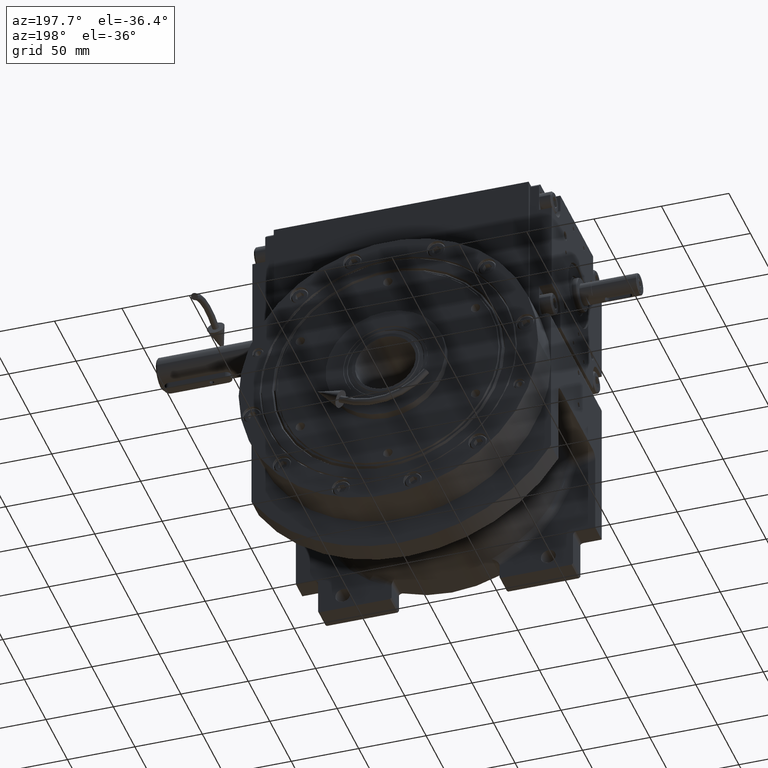
[diagram: clean part render]
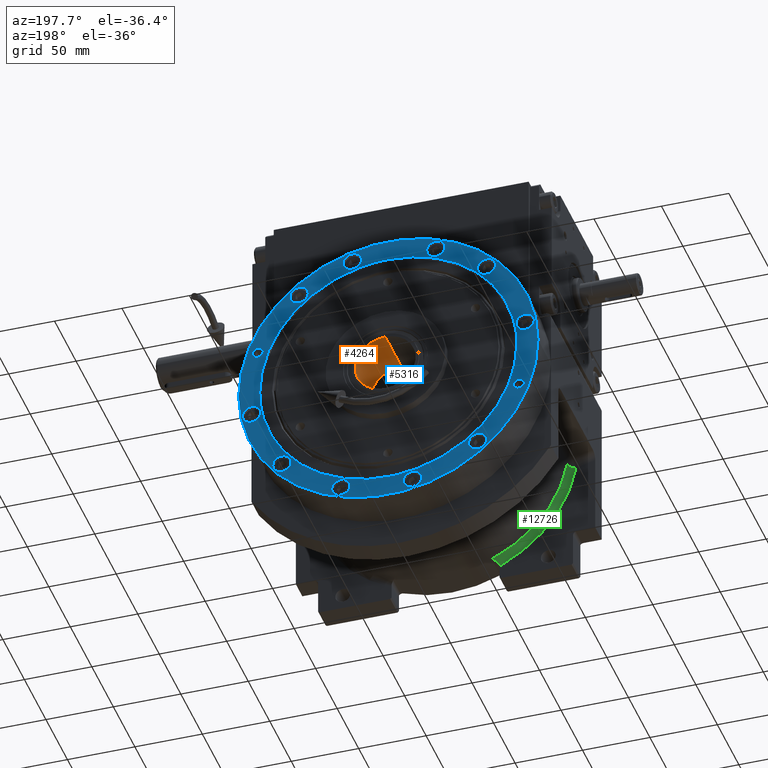
[diagram: same view with three faces highlighted in distinct colors, each labeled with its STEP entity id]
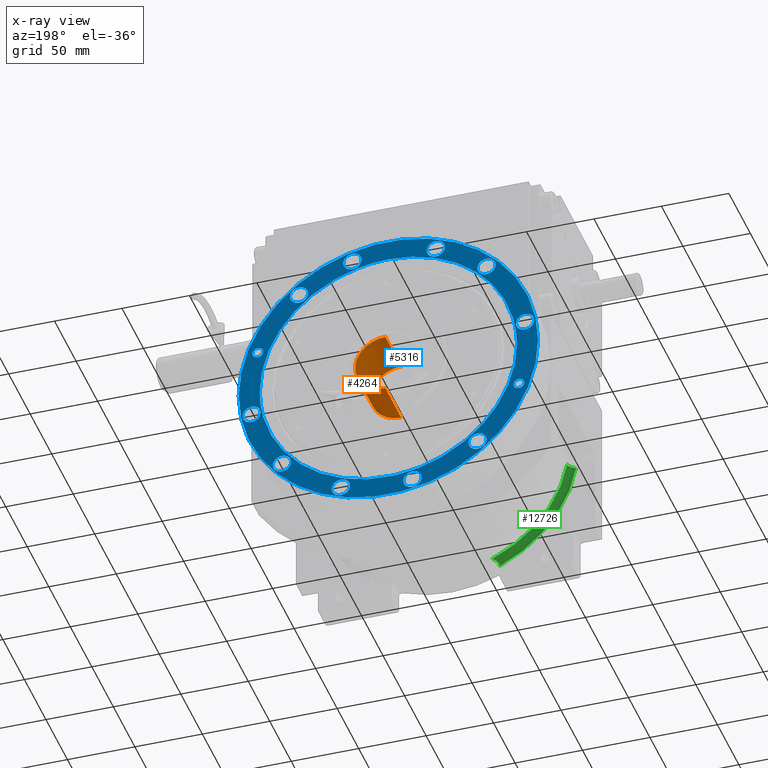
[diagram: x-ray of the same camera — body ghosted, the three highlighted faces saturated]
A machine part, auxiliary view with three faces highlighted in distinct colors.
The next image is the same camera in x-ray (body ghosted, the three faces saturated) — at least one of them is partly hidden behind the body in this view.
Their STEP definitions:

[orange] entity #4264 — the highlighted cylindrical surface (edge-blend (fillet) strip) has radius 22.5 mm, axis along (0, -1, 0).
#496 = CIRCLE ( 'NONE', #66242, 22.50000000000000000 ) ;
#581 = VECTOR ( 'NONE', #63759, 1000.000000000000000 ) ;
#1739 = VERTEX_POINT ( 'NONE', #59413 ) ;
#4264 = ADVANCED_FACE ( 'NONE', ( #16857 ), #53827, .F. ) ;
#4739 = EDGE_CURVE ( 'NONE', #49325, #18352, #496, .T. ) ;
#8227 = AXIS2_PLACEMENT_3D ( 'NONE', #32227, #53504, #48973 ) ;
#9124 = CARTESIAN_POINT ( 'NONE',  ( 22.50000000000000000, 1.775709547036180256E-15, 9.999999999999994671 ) ) ;
#11554 = DIRECTION ( 'NONE',  ( 0.000000000000000000, 0.000000000000000000, -1.000000000000000000 ) ) ;
#16857 = FACE_OUTER_BOUND ( 'NONE', #42939, .T. ) ;
#17493 = EDGE_CURVE ( 'NONE', #1739, #21346, #46118, .T. ) ;
#18308 = ORIENTED_EDGE ( 'NONE', *, *, #17493, .T. ) ;
#18352 = VERTEX_POINT ( 'NONE', #63827 ) ;
#18868 = EDGE_CURVE ( 'NONE', #18352, #21346, #42497, .T. ) ;
#21346 = VERTEX_POINT ( 'NONE', #49564 ) ;
#32227 = CARTESIAN_POINT ( 'NONE',  ( 0.000000000000000000, 2.571673343026990270E-15, 9.999999999999994671 ) ) ;
#35027 = DIRECTION ( 'NONE',  ( 1.000000000000000000, -1.578983857244664921E-16, 0.000000000000000000 ) ) ;
#35186 = ORIENTED_EDGE ( 'NONE', *, *, #43159, .T. ) ;
#38413 = CARTESIAN_POINT ( 'NONE',  ( 0.000000000000000000, 3.552713678800499352E-15, 9.999999999999994671 ) ) ;
#39742 = LINE ( 'NONE', #50553, #53269 ) ;
#42497 = LINE ( 'NONE', #52624, #581 ) ;
#42939 = EDGE_LOOP ( 'NONE', ( #35186, #18308, #55869, #66685 ) ) ;
#43159 = EDGE_CURVE ( 'NONE', #49325, #1739, #39742, .T. ) ;
#44277 = DIRECTION ( 'NONE',  ( 0.000000000000000000, 0.000000000000000000, -1.000000000000000000 ) ) ;
#44464 = DIRECTION ( 'NONE',  ( 0.000000000000000000, 0.000000000000000000, -1.000000000000000000 ) ) ;
#46118 = CIRCLE ( 'NONE', #65011, 22.50000000000000000 ) ;
#48973 = DIRECTION ( 'NONE',  ( -1.000000000000000000, 0.000000000000000000, 0.000000000000000000 ) ) ;
#49325 = VERTEX_POINT ( 'NONE', #9124 ) ;
#49564 = CARTESIAN_POINT ( 'NONE',  ( -22.50000000000000000, 8.572244476756641794E-16, -26.99999999999999645 ) ) ;
#50553 = CARTESIAN_POINT ( 'NONE',  ( 22.50000000000000000, 5.327128641108539387E-15, 9.999999999999994671 ) ) ;
#52624 = CARTESIAN_POINT ( 'NONE',  ( -22.50000000000000000, 2.571673343026990270E-15, 9.999999999999994671 ) ) ;
#53269 = VECTOR ( 'NONE', #44277, 1000.000000000000000 ) ;
#53504 = DIRECTION ( 'NONE',  ( 0.000000000000000000, 0.000000000000000000, 1.000000000000000000 ) ) ;
#53827 = CYLINDRICAL_SURFACE ( 'NONE', #8227, 22.50000000000000000 ) ;
#55869 = ORIENTED_EDGE ( 'NONE', *, *, #18868, .F. ) ;
#59413 = CARTESIAN_POINT ( 'NONE',  ( 22.50000000000000000, 1.775709547036180256E-15, -26.99999999999999645 ) ) ;
#63759 = DIRECTION ( 'NONE',  ( 0.000000000000000000, 0.000000000000000000, -1.000000000000000000 ) ) ;
#63827 = CARTESIAN_POINT ( 'NONE',  ( -22.50000000000000000, 8.572244476756641794E-16, 9.999999999999994671 ) ) ;
#63862 = DIRECTION ( 'NONE',  ( 1.000000000000000000, -1.578983857244664921E-16, 0.000000000000000000 ) ) ;
#65011 = AXIS2_PLACEMENT_3D ( 'NONE', #67092, #44464, #35027 ) ;
#66242 = AXIS2_PLACEMENT_3D ( 'NONE', #38413, #11554, #63862 ) ;
#66685 = ORIENTED_EDGE ( 'NONE', *, *, #4739, .F. ) ;
#67092 = CARTESIAN_POINT ( 'NONE',  ( 0.000000000000000000, 3.552713678800499352E-15, -26.99999999999999645 ) ) ;

[blue] entity #5316 — the highlighted planar face has unit normal (0, 1, 0).
#125 = PLANE ( 'NONE',  #43910 ) ;
#344 = CARTESIAN_POINT ( 'NONE',  ( -86.90708454479874945, -39.38558881133341316, 30.00000000000000000 ) ) ;
#446 = CARTESIAN_POINT ( 'NONE',  ( 26.65836164555969745, -99.49036010777399497, 30.00000000000000000 ) ) ;
#586 = DIRECTION ( 'NONE',  ( 0.000000000000000000, 0.000000000000000000, -1.000000000000000000 ) ) ;
#636 = VERTEX_POINT ( 'NONE', #4234 ) ;
#717 = CARTESIAN_POINT ( 'NONE',  ( -93.37678127073233725, -19.36817286081602418, 30.00000000000000000 ) ) ;
#1112 = EDGE_CURVE ( 'NONE', #1313, #38443, #45524, .T. ) ;
#1255 = DIRECTION ( 'NONE',  ( 0.000000000000000000, 0.000000000000000000, 1.000000000000000000 ) ) ;
#1313 = VERTEX_POINT ( 'NONE', #61565 ) ;
#1317 = CARTESIAN_POINT ( 'NONE',  ( 90.50165223639055512, -30.70816640261620734, 30.00000000000000355 ) ) ;
#1653 = CARTESIAN_POINT ( 'NONE',  ( 94.46446488700054545, -13.22672580336032766, 30.00000000000000000 ) ) ;
#1850 = DIRECTION ( 'NONE',  ( -1.000000000000000000, 0.000000000000000000, 0.000000000000000000 ) ) ;
#1936 = DIRECTION ( 'NONE',  ( -1.000000000000000000, 0.000000000000000000, 0.000000000000000000 ) ) ;
#1980 = VERTEX_POINT ( 'NONE', #60344 ) ;
#2085 = ORIENTED_EDGE ( 'NONE', *, *, #8615, .F. ) ;
#2575 = CARTESIAN_POINT ( 'NONE',  ( 12.46375600860570287, 94.75295601976939963, 30.00000000000000000 ) ) ;
#2841 = CARTESIAN_POINT ( 'NONE',  ( -101.4351985602574047, -17.88576229969384812, 30.00000000000000000 ) ) ;
#2942 = CARTESIAN_POINT ( 'NONE',  ( 82.63521789501693604, 47.70355364001917309, 30.00000000000000000 ) ) ;
#3043 = EDGE_LOOP ( 'NONE', ( #51565, #18994 ) ) ;
#3234 = CARTESIAN_POINT ( 'NONE',  ( -72.83199846221440055, -72.83199846221440055, 30.00000000000000000 ) ) ;
#3282 = CARTESIAN_POINT ( 'NONE',  ( 93.21483388766992562, 20.13355074554134205, 30.00000000000000000 ) ) ;
#3425 = EDGE_CURVE ( 'NONE', #68471, #61091, #50872, .T. ) ;
#3493 = EDGE_CURVE ( 'NONE', #9496, #16927, #22336, .T. ) ;
#3617 = CARTESIAN_POINT ( 'NONE',  ( -58.18781742204076579, 75.81346727614813119, 30.00000000000000355 ) ) ;
#3707 = DIRECTION ( 'NONE',  ( 1.000000000000000000, 0.000000000000000000, 0.000000000000000000 ) ) ;
#3802 = EDGE_CURVE ( 'NONE', #62930, #53447, #53887, .T. ) ;
#3807 = ORIENTED_EDGE ( 'NONE', *, *, #36757, .F. ) ;
#3873 = DIRECTION ( 'NONE',  ( 0.000000000000000000, 0.000000000000000000, 1.000000000000000000 ) ) ;
#3960 = CARTESIAN_POINT ( 'NONE',  ( 63.00504599296380093, 71.86005922779146715, 30.00000000000000000 ) ) ;
#4234 = CARTESIAN_POINT ( 'NONE',  ( -24.63576229969385167, 101.4351985602574047, 30.00000000000000000 ) ) ;
#4674 = CARTESIAN_POINT ( 'NONE',  ( 0.000000000000000000, 0.000000000000000000, 30.00000000000000000 ) ) ;
#5316 = ADVANCED_FACE ( 'NONE', ( #9584, #25947, #47945, #47605, #41665, #68858, #62941, #21065, #15157, #42358, #31187, #57371, #63621, #15842 ), #125, .T. ) ;
#5612 = CARTESIAN_POINT ( 'NONE',  ( -93.21483409806533871, -20.13354977035402271, 30.00000000000000000 ) ) ;
#5955 = CARTESIAN_POINT ( 'NONE',  ( -63.00504900422143351, -71.86005655515261026, 29.99999999999999645 ) ) ;
#6345 = VERTEX_POINT ( 'NONE', #34822 ) ;
#6427 = CARTESIAN_POINT ( 'NONE',  ( -92.78833994094860316, 35.22807476254389769, 30.00000000000000000 ) ) ;
#6442 = EDGE_CURVE ( 'NONE', #51020, #46300, #8721, .T. ) ;
#6649 = CARTESIAN_POINT ( 'NONE',  ( -42.27891310516112355, -85.70857936102159158, 30.00000000000000711 ) ) ;
#7201 = DIRECTION ( 'NONE',  ( 1.000000000000000000, 0.000000000000000000, 0.000000000000000000 ) ) ;
#7247 = CARTESIAN_POINT ( 'NONE',  ( 82.77081126671009770, -47.77538228772262840, 30.00000000000000355 ) ) ;
#7305 = VERTEX_POINT ( 'NONE', #25460 ) ;
#7591 = CARTESIAN_POINT ( 'NONE',  ( 71.85999133533280769, -63.00468083268515329, 30.00000000000000355 ) ) ;
#7787 = AXIS2_PLACEMENT_3D ( 'NONE', #50615, #34575, #45722 ) ;
#7905 = B_SPLINE_CURVE_WITH_KNOTS ( 'NONE', 3,
 ( #29115, #51778, #23884, #57001, #45176, #35392, #20002, #50761, #35049, #18638, #67796, #14771, #9206, #39935, #13432, #3617, #40965, #51091, #66771, #18987, #56662, #24225, #51448, #2575, #25243, #62228, #34713, #55983, #8168, #3960, #67457, #24896, #29443, #2942, #8875, #36062, #62569, #40288, #29790, #50413, #3282, #41312, #45518, #61892, #30132, #46537 ),
 .UNSPECIFIED., .F., .F.,
 ( 4, 1, 1, 1, 2, 2, 2, 2, 2, 2, 2, 2, 2, 2, 2, 2, 2, 2, 2, 2, 1, 1, 1, 2, 2, 4 ),
 ( 0.000000000000000000, 0.03124999999999973632, 0.04687499999999959061, 0.05468749999999950734, 0.05859374999999949346, 0.06249999999999947264, 0.1249999999999995282, 0.1874999999999995282, 0.2499999999999995559, 0.3124999999999995559, 0.3749999999999996114, 0.4374999999999996114, 0.4999999999999996669, 0.5624999999999996669, 0.6249999999999996669, 0.6874999999999997780, 0.7499999999999997780, 0.8124999999999997780, 0.8437499999999997780, 0.8749999999999996669, 0.9062499999999996669, 0.9218749999999996669, 0.9296874999999996669, 0.9335937499999996669, 0.9374999999999996669, 1.000000000000000000 ),
 .UNSPECIFIED. ) ;
#7930 = EDGE_CURVE ( 'NONE', #32908, #60410, #41100, .T. ) ;
#7938 = DIRECTION ( 'NONE',  ( 0.000000000000000000, 0.000000000000000000, 1.000000000000000000 ) ) ;
#8168 = CARTESIAN_POINT ( 'NONE',  ( 58.18774278256792343, 75.81359446972774663, 30.00000000000000000 ) ) ;
#8323 = DIRECTION ( 'NONE',  ( 1.000000000000000000, 0.000000000000000000, 0.000000000000000000 ) ) ;
#8615 = EDGE_CURVE ( 'NONE', #46300, #51020, #22263, .T. ) ;
#8721 = CIRCLE ( 'NONE', #55496, 6.749999999999999112 ) ;
#8797 = AXIS2_PLACEMENT_3D ( 'NONE', #53134, #16491, #21374 ) ;
#8875 = CARTESIAN_POINT ( 'NONE',  ( 85.57274150929065115, 42.20782214628508200, 30.00000000000001066 ) ) ;
#8885 = AXIS2_PLACEMENT_3D ( 'NONE', #65794, #11769, #7201 ) ;
#8931 = DIRECTION ( 'NONE',  ( 0.000000000000000000, 0.000000000000000000, 1.000000000000000000 ) ) ;
#9206 = CARTESIAN_POINT ( 'NONE',  ( -75.81391896997033086, 58.18694900105990797, 30.00000000000001776 ) ) ;
#9496 = VERTEX_POINT ( 'NONE', #30188 ) ;
#9584 = FACE_BOUND ( 'NONE', #15658, .T. ) ;
#9636 = VERTEX_POINT ( 'NONE', #6427 ) ;
#10244 = DIRECTION ( 'NONE',  ( -1.000000000000000000, 0.000000000000000000, 0.000000000000000000 ) ) ;
#10667 = CARTESIAN_POINT ( 'NONE',  ( 72.95712379771360645, -78.90257764125479412, 30.00000000000000000 ) ) ;
#11029 = DIRECTION ( 'NONE',  ( 0.000000000000000000, 0.000000000000000000, 1.000000000000000000 ) ) ;
#11114 = ORIENTED_EDGE ( 'NONE', *, *, #6442, .F. ) ;
#11243 = CIRCLE ( 'NONE', #34660, 6.749999999999999112 ) ;
#11351 = CIRCLE ( 'NONE', #51456, 6.750000000000006217 ) ;
#11357 = EDGE_LOOP ( 'NONE', ( #12372, #32701 ) ) ;
#11769 = DIRECTION ( 'NONE',  ( 0.000000000000000000, 0.000000000000000000, 1.000000000000000000 ) ) ;
#12372 = ORIENTED_EDGE ( 'NONE', *, *, #65785, .F. ) ;
#12659 = DIRECTION ( 'NONE',  ( 0.000000000000000000, 0.000000000000000000, 1.000000000000000000 ) ) ;
#13432 = CARTESIAN_POINT ( 'NONE',  ( -63.00533367268138107, 71.85987798514420888, 30.00000000000000000 ) ) ;
#13721 = CARTESIAN_POINT ( 'NONE',  ( -35.22807476254394743, -96.78833994094861737, 30.00000000000000000 ) ) ;
#14370 = CIRCLE ( 'NONE', #8797, 4.000000000000003553 ) ;
#14606 = EDGE_LOOP ( 'NONE', ( #45671, #30124 ) ) ;
#14771 = CARTESIAN_POINT ( 'NONE',  ( -82.77081249183450495, 47.77538013039470144, 30.00000000000000711 ) ) ;
#14872 = VERTEX_POINT ( 'NONE', #10667 ) ;
#15062 = AXIS2_PLACEMENT_3D ( 'NONE', #61009, #40773, #8323 ) ;
#15157 = FACE_BOUND ( 'NONE', #14606, .T. ) ;
#15382 = CARTESIAN_POINT ( 'NONE',  ( 78.90257764125479412, 66.20712379771359224, 30.00000000000000000 ) ) ;
#15658 = EDGE_LOOP ( 'NONE', ( #56767, #49535, #24382 ) ) ;
#15769 = CARTESIAN_POINT ( 'NONE',  ( 59.45712379771349987, -78.90257764125479412, 30.00000000000000000 ) ) ;
#15842 = FACE_OUTER_BOUND ( 'NONE', #22026, .T. ) ;
#16081 = CARTESIAN_POINT ( 'NONE',  ( 108.1851985602573905, 17.88576229969384812, 30.00000000000000000 ) ) ;
#16085 = CIRCLE ( 'NONE', #48253, 111.0000000000000000 ) ;
#16207 = EDGE_CURVE ( 'NONE', #40003, #35895, #16085, .T. ) ;
#16338 = DIRECTION ( 'NONE',  ( 0.000000000000000000, 0.000000000000000000, 1.000000000000000000 ) ) ;
#16427 = CARTESIAN_POINT ( 'NONE',  ( 66.20712379771359224, -78.90257764125479412, 30.00000000000000000 ) ) ;
#16491 = DIRECTION ( 'NONE',  ( 0.000000000000000000, 0.000000000000000000, -1.000000000000000000 ) ) ;
#16600 = DIRECTION ( 'NONE',  ( 1.000000000000000000, 0.000000000000000000, 0.000000000000000000 ) ) ;
#16764 = CARTESIAN_POINT ( 'NONE',  ( -12.46376276013532269, -94.75295510460688320, 29.99999999999999645 ) ) ;
#16927 = VERTEX_POINT ( 'NONE', #33931 ) ;
#17090 = CARTESIAN_POINT ( 'NONE',  ( -30.70968628796335764, -90.50082709171405781, 30.00000000000000355 ) ) ;
#17558 = EDGE_CURVE ( 'NONE', #53447, #62930, #38294, .T. ) ;
#18044 = CARTESIAN_POINT ( 'NONE',  ( 12.46351380911021245, -94.75307471979527918, 30.00000000000000711 ) ) ;
#18061 = DIRECTION ( 'NONE',  ( 0.000000000000000000, 0.000000000000000000, 1.000000000000000000 ) ) ;
#18388 = CARTESIAN_POINT ( 'NONE',  ( 93.82440576391282150, -17.06861220496205078, 29.99999999999999645 ) ) ;
#18401 = DIRECTION ( 'NONE',  ( -1.000000000000000000, 0.000000000000000000, 0.000000000000000000 ) ) ;
#18638 = CARTESIAN_POINT ( 'NONE',  ( -90.50165271740971207, 30.70816492772434003, 30.00000000000000000 ) ) ;
#18901 = AXIS2_PLACEMENT_3D ( 'NONE', #446, #12659, #27327 ) ;
#18936 = CIRCLE ( 'NONE', #41262, 6.750000000000006217 ) ;
#18987 = CARTESIAN_POINT ( 'NONE',  ( -24.74579984280093115, 92.31004320519716089, 30.00000000000000355 ) ) ;
#18994 = ORIENTED_EDGE ( 'NONE', *, *, #42344, .T. ) ;
#19214 = DIRECTION ( 'NONE',  ( -1.000000000000000000, 0.000000000000000000, 0.000000000000000000 ) ) ;
#19500 = EDGE_CURVE ( 'NONE', #59185, #56883, #31658, .T. ) ;
#19663 = ORIENTED_EDGE ( 'NONE', *, *, #42474, .F. ) ;
#19738 = ORIENTED_EDGE ( 'NONE', *, *, #1112, .F. ) ;
#20002 = CARTESIAN_POINT ( 'NONE',  ( -93.68169764418615841, 17.83509717152595542, 30.00000000000000355 ) ) ;
#20184 = ORIENTED_EDGE ( 'NONE', *, *, #51719, .F. ) ;
#20619 = VERTEX_POINT ( 'NONE', #37899 ) ;
#21064 = CIRCLE ( 'NONE', #37875, 4.000000000000003553 ) ;
#21065 = FACE_BOUND ( 'NONE', #46050, .T. ) ;
#21122 = CARTESIAN_POINT ( 'NONE',  ( -17.88576229969384812, 101.4351985602574047, 30.00000000000000000 ) ) ;
#21374 = DIRECTION ( 'NONE',  ( -1.000000000000000000, 0.000000000000000000, 0.000000000000000000 ) ) ;
#21996 = CARTESIAN_POINT ( 'NONE',  ( -94.74933639994532086, -12.47889505275104050, 30.00000000000000355 ) ) ;
#22026 = EDGE_LOOP ( 'NONE', ( #59397, #53060 ) ) ;
#22263 = CIRCLE ( 'NONE', #45679, 6.749999999999999112 ) ;
#22336 = B_SPLINE_CURVE_WITH_KNOTS ( 'NONE', 3,
 ( #59583, #64811, #55394, #1653, #54352, #18388, #44586, #22948, #44228, #1317, #65496, #7247, #49137, #7591, #38998, #33755, #28522, #49820, #23636, #65839, #18044, #39330, #28877 ),
 .UNSPECIFIED., .F., .F.,
 ( 4, 1, 1, 1, 2, 2, 2, 2, 2, 2, 2, 2, 4 ),
 ( 0.000000000000000000, 0.03125000153323884838, 0.04687500229985828298, 0.05468750268316800028, 0.05859375287482285199, 0.06250000306647769677, 0.1250000061329549494, 0.1875000091994322160, 0.2500000122659094548, 0.3125000153323866936, 0.3750000183988639879, 0.4375000214653412267, 0.5000000245318184655 ),
 .UNSPECIFIED. ) ;
#22349 = CARTESIAN_POINT ( 'NONE',  ( -6.261276405276430701, -95.36391539573197917, 30.00000000000000355 ) ) ;
#22875 = DIRECTION ( 'NONE',  ( 1.000000000000000000, 0.000000000000000000, 0.000000000000000000 ) ) ;
#22948 = CARTESIAN_POINT ( 'NONE',  ( 93.60825815810538586, -18.21660170345569085, 29.99999999999999289 ) ) ;
#23035 = CARTESIAN_POINT ( 'NONE',  ( -58.18774616747545991, -75.81359184743369894, 29.99999999999999289 ) ) ;
#23508 = EDGE_CURVE ( 'NONE', #55620, #6345, #34577, .T. ) ;
#23524 = CARTESIAN_POINT ( 'NONE',  ( 101.4351985602574047, 17.88576229969384812, 30.00000000000000000 ) ) ;
#23636 = CARTESIAN_POINT ( 'NONE',  ( 30.70942879387967750, -90.50100865208744949, 30.00000000000000711 ) ) ;
#23825 = AXIS2_PLACEMENT_3D ( 'NONE', #28439, #64373, #16600 ) ;
#23884 = CARTESIAN_POINT ( 'NONE',  ( -95.13156735912539830, 7.818614458239847131, 30.00000000000001066 ) ) ;
#24225 = CARTESIAN_POINT ( 'NONE',  ( -6.261284131796054808, 95.36384835916985026, 29.99999999999999645 ) ) ;
#24267 = CIRCLE ( 'NONE', #54346, 6.749999999999999112 ) ;
#24382 = ORIENTED_EDGE ( 'NONE', *, *, #31992, .T. ) ;
#24598 = ORIENTED_EDGE ( 'NONE', *, *, #37942, .F. ) ;
#24636 = CARTESIAN_POINT ( 'NONE',  ( 41.97807476254389769, 96.78833994094861737, 30.00000000000000000 ) ) ;
#24767 = CARTESIAN_POINT ( 'NONE',  ( -59.45712379771349987, 78.90257764125469464, 30.00000000000000000 ) ) ;
#24797 = DIRECTION ( 'NONE',  ( 0.000000000000000000, 0.000000000000000000, 1.000000000000000000 ) ) ;
#24896 = CARTESIAN_POINT ( 'NONE',  ( 75.81440643586275030, 58.18610879824851168, 30.00000000000000355 ) ) ;
#25243 = CARTESIAN_POINT ( 'NONE',  ( 24.74553572605270091, 92.31016553175284400, 30.00000000000000355 ) ) ;
#25296 = EDGE_LOOP ( 'NONE', ( #53108, #3807 ) ) ;
#25327 = EDGE_CURVE ( 'NONE', #1980, #26799, #11351, .T. ) ;
#25460 = CARTESIAN_POINT ( 'NONE',  ( -95.36396765462809810, -1.146839552493053995E-07, 30.00000093867580375 ) ) ;
#25600 = DIRECTION ( 'NONE',  ( 0.000000000000000000, 0.000000000000000000, -1.000000000000000000 ) ) ;
#25736 = CARTESIAN_POINT ( 'NONE',  ( -96.78833994094861737, 35.22807476254389769, 30.00000000000000000 ) ) ;
#25947 = FACE_BOUND ( 'NONE', #60874, .T. ) ;
#25956 = CARTESIAN_POINT ( 'NONE',  ( -72.95712379771350697, 78.90257764125469464, 30.00000000000000000 ) ) ;
#26525 = CARTESIAN_POINT ( 'NONE',  ( 94.68519856025739045, 17.88576229969384812, 30.00000000000000000 ) ) ;
#26799 = VERTEX_POINT ( 'NONE', #35935 ) ;
#26891 = CARTESIAN_POINT ( 'NONE',  ( -47.77533377604817844, -82.77059198701886089, 30.00000000000000355 ) ) ;
#27228 = CARTESIAN_POINT ( 'NONE',  ( -89.30279205802959552, -33.60238237805035055, 29.99999999999999289 ) ) ;
#27327 = DIRECTION ( 'NONE',  ( 1.000000000000000000, 0.000000000000000000, 0.000000000000000000 ) ) ;
#27365 = CIRCLE ( 'NONE', #55218, 4.000000000000003553 ) ;
#27616 = CIRCLE ( 'NONE', #36536, 6.750000000000006217 ) ;
#27929 = CARTESIAN_POINT ( 'NONE',  ( -92.33404816371216839, -23.93848833026562062, 30.00000000000000355 ) ) ;
#28252 = CARTESIAN_POINT ( 'NONE',  ( -93.45575989371496917, -18.98328321807429475, 30.00000000000000000 ) ) ;
#28439 = CARTESIAN_POINT ( 'NONE',  ( 101.4351985602574047, 17.88576229969384812, 30.00000000000000000 ) ) ;
#28522 = CARTESIAN_POINT ( 'NONE',  ( 47.77527696021381587, -82.77071031253373690, 30.00000000000000711 ) ) ;
#28534 = EDGE_LOOP ( 'NONE', ( #20184, #36468 ) ) ;
#28877 = CARTESIAN_POINT ( 'NONE',  ( -4.229489444460266770E-10, -95.36392179383099688, 29.99999999999998579 ) ) ;
#29115 = CARTESIAN_POINT ( 'NONE',  ( -95.36396765462809810, -1.146839552493053995E-07, 30.00000093867580375 ) ) ;
#29443 = CARTESIAN_POINT ( 'NONE',  ( 81.03134691207912965, 50.37871826842354750, 30.00000000000000000 ) ) ;
#29670 = AXIS2_PLACEMENT_3D ( 'NONE', #64123, #16338, #47412 ) ;
#29790 = CARTESIAN_POINT ( 'NONE',  ( 92.33404786841357748, 23.93848947927231663, 30.00000000000000711 ) ) ;
#29866 = CARTESIAN_POINT ( 'NONE',  ( 85.65257764125480833, 66.20712379771359224, 30.00000000000000000 ) ) ;
#30124 = ORIENTED_EDGE ( 'NONE', *, *, #38441, .F. ) ;
#30132 = CARTESIAN_POINT ( 'NONE',  ( 95.36004226804972461, 6.278671310551059648, 30.00000000000000000 ) ) ;
#30188 = CARTESIAN_POINT ( 'NONE',  ( 95.36396765462740177, 1.146839460001253997E-07, 30.00000093867605244 ) ) ;
#30933 = VERTEX_POINT ( 'NONE', #50844 ) ;
#31187 = FACE_BOUND ( 'NONE', #44648, .T. ) ;
#31221 = CARTESIAN_POINT ( 'NONE',  ( -41.97807476254394743, -96.78833994094861737, 30.00000000000000000 ) ) ;
#31658 = CIRCLE ( 'NONE', #60593, 6.750000000000006217 ) ;
#31992 = EDGE_CURVE ( 'NONE', #16927, #7305, #57778, .T. ) ;
#32119 = CARTESIAN_POINT ( 'NONE',  ( -75.81440830140243747, -58.18610632982992570, 30.00000000000000355 ) ) ;
#32701 = ORIENTED_EDGE ( 'NONE', *, *, #7930, .F. ) ;
#32908 = VERTEX_POINT ( 'NONE', #67045 ) ;
#33037 = AXIS2_PLACEMENT_3D ( 'NONE', #67159, #8931, #41687 ) ;
#33159 = CARTESIAN_POINT ( 'NONE',  ( -71.86025690672755672, -63.00450664072521079, 30.00000000000000711 ) ) ;
#33169 = DIRECTION ( 'NONE',  ( -1.000000000000000000, 0.000000000000000000, 0.000000000000000000 ) ) ;
#33509 = CARTESIAN_POINT ( 'NONE',  ( -90.87954666657383029, -29.19701578448387025, 29.99999999999999645 ) ) ;
#33755 = CARTESIAN_POINT ( 'NONE',  ( 58.18781398852603814, -75.81346993082416930, 30.00000000000000000 ) ) ;
#33931 = CARTESIAN_POINT ( 'NONE',  ( -4.229489444460266770E-10, -95.36392179383099688, 29.99999999999998579 ) ) ;
#33966 = DIRECTION ( 'NONE',  ( 0.000000000000000000, 0.000000000000000000, 1.000000000000000000 ) ) ;
#34575 = DIRECTION ( 'NONE',  ( 0.000000000000000000, 0.000000000000000000, -1.000000000000000000 ) ) ;
#34577 = CIRCLE ( 'NONE', #41238, 6.749999999999999112 ) ;
#34660 = AXIS2_PLACEMENT_3D ( 'NONE', #16427, #38077, #33169 ) ;
#34713 = CARTESIAN_POINT ( 'NONE',  ( 42.27890844989412500, 85.70858167851324083, 30.00000000000000355 ) ) ;
#34822 = CARTESIAN_POINT ( 'NONE',  ( 28.47807476254390124, 96.78833994094861737, 30.00000000000000000 ) ) ;
#35049 = CARTESIAN_POINT ( 'NONE',  ( -92.30979584540520477, 24.74573865369705317, 29.99999999999999289 ) ) ;
#35392 = CARTESIAN_POINT ( 'NONE',  ( -93.82440591446295741, 17.06861137740426670, 30.00000000000000000 ) ) ;
#35843 = CARTESIAN_POINT ( 'NONE',  ( -35.22807476254394743, -96.78833994094861737, 30.00000000000000000 ) ) ;
#35895 = VERTEX_POINT ( 'NONE', #56966 ) ;
#35935 = CARTESIAN_POINT ( 'NONE',  ( -66.08199846221440055, -72.83199846221440055, 30.00000000000000000 ) ) ;
#36062 = CARTESIAN_POINT ( 'NONE',  ( 86.90708372316407804, 39.38559063786794923, 30.00000000000000711 ) ) ;
#36441 = DIRECTION ( 'NONE',  ( 0.000000000000000000, 0.000000000000000000, 1.000000000000000000 ) ) ;
#36468 = ORIENTED_EDGE ( 'NONE', *, *, #25327, .F. ) ;
#36536 = AXIS2_PLACEMENT_3D ( 'NONE', #2841, #24797, #19214 ) ;
#36757 = EDGE_CURVE ( 'NONE', #61091, #68471, #54199, .T. ) ;
#37125 = DIRECTION ( 'NONE',  ( 1.000000000000000000, 0.000000000000000000, 0.000000000000000000 ) ) ;
#37308 = CARTESIAN_POINT ( 'NONE',  ( 33.40836164555970100, -99.49036010777399497, 30.00000000000000000 ) ) ;
#37495 = AXIS2_PLACEMENT_3D ( 'NONE', #46803, #41237, #62493 ) ;
#37875 = AXIS2_PLACEMENT_3D ( 'NONE', #25736, #586, #47014 ) ;
#37899 = CARTESIAN_POINT ( 'NONE',  ( 100.7883399409486032, -35.22807476254389769, 30.00000000000000000 ) ) ;
#37942 = EDGE_CURVE ( 'NONE', #60297, #636, #48735, .T. ) ;
#38077 = DIRECTION ( 'NONE',  ( 0.000000000000000000, 0.000000000000000000, 1.000000000000000000 ) ) ;
#38294 = CIRCLE ( 'NONE', #58349, 6.750000000000006217 ) ;
#38441 = EDGE_CURVE ( 'NONE', #6345, #55620, #24267, .T. ) ;
#38443 = VERTEX_POINT ( 'NONE', #63242 ) ;
#38735 = CARTESIAN_POINT ( 'NONE',  ( -82.63521911428769329, -47.70355151878913347, 30.00000000000000000 ) ) ;
#38998 = CARTESIAN_POINT ( 'NONE',  ( 63.00533069534351682, -71.85988062351042061, 30.00000000000000711 ) ) ;
#39275 = CARTESIAN_POINT ( 'NONE',  ( 26.65836164555969745, -99.49036010777399497, 30.00000000000000000 ) ) ;
#39330 = CARTESIAN_POINT ( 'NONE',  ( 6.261277018832593022, -95.36384883878687901, 30.00000000000000000 ) ) ;
#39894 = DIRECTION ( 'NONE',  ( 1.000000000000000000, 0.000000000000000000, 0.000000000000000000 ) ) ;
#39935 = CARTESIAN_POINT ( 'NONE',  ( -71.85999357129684029, 63.00467825743183425, 30.00000000000000711 ) ) ;
#39963 = DIRECTION ( 'NONE',  ( 0.000000000000000000, 0.000000000000000000, 1.000000000000000000 ) ) ;
#40003 = VERTEX_POINT ( 'NONE', #41242 ) ;
#40134 = EDGE_LOOP ( 'NONE', ( #19738, #61082 ) ) ;
#40288 = CARTESIAN_POINT ( 'NONE',  ( 90.87954623065817827, 29.19701717010804387, 30.00000000000000711 ) ) ;
#40378 = AXIS2_PLACEMENT_3D ( 'NONE', #52439, #40948, #57315 ) ;
#40773 = DIRECTION ( 'NONE',  ( 0.000000000000000000, 0.000000000000000000, 1.000000000000000000 ) ) ;
#40838 = ORIENTED_EDGE ( 'NONE', *, *, #17558, .F. ) ;
#40948 = DIRECTION ( 'NONE',  ( 0.000000000000000000, 0.000000000000000000, 1.000000000000000000 ) ) ;
#40965 = CARTESIAN_POINT ( 'NONE',  ( -47.77528118985262040, 82.77070784699705541, 30.00000000000000355 ) ) ;
#41100 = CIRCLE ( 'NONE', #50019, 6.749999999999999112 ) ;
#41237 = DIRECTION ( 'NONE',  ( 0.000000000000000000, 0.000000000000000000, 1.000000000000000000 ) ) ;
#41238 = AXIS2_PLACEMENT_3D ( 'NONE', #55743, #7938, #3707 ) ;
#41242 = CARTESIAN_POINT ( 'NONE',  ( -111.0000000000000000, 4.531193156845210737E-15, 30.00000000000000000 ) ) ;
#41262 = AXIS2_PLACEMENT_3D ( 'NONE', #65518, #18061, #50520 ) ;
#41312 = CARTESIAN_POINT ( 'NONE',  ( 93.37678107592141430, 19.36817380080752926, 30.00000000000000000 ) ) ;
#41637 = DIRECTION ( 'NONE',  ( 1.000000000000000000, 0.000000000000000000, 0.000000000000000000 ) ) ;
#41665 = FACE_BOUND ( 'NONE', #28534, .T. ) ;
#41687 = DIRECTION ( 'NONE',  ( -1.000000000000000000, 0.000000000000000000, 0.000000000000000000 ) ) ;
#42344 = EDGE_CURVE ( 'NONE', #30933, #9636, #21064, .T. ) ;
#42358 = FACE_BOUND ( 'NONE', #65542, .T. ) ;
#42474 = EDGE_CURVE ( 'NONE', #14872, #61591, #51219, .T. ) ;
#42965 = CIRCLE ( 'NONE', #15062, 6.750000000000006217 ) ;
#43278 = CARTESIAN_POINT ( 'NONE',  ( -95.36396765462809810, -1.146839552493053995E-07, 30.00000093867580375 ) ) ;
#43313 = ORIENTED_EDGE ( 'NONE', *, *, #60176, .T. ) ;
#43910 = AXIS2_PLACEMENT_3D ( 'NONE', #4674, #36441, #37125 ) ;
#44228 = CARTESIAN_POINT ( 'NONE',  ( 92.30979554816967436, -24.74573984201948207, 30.00000000000000355 ) ) ;
#44586 = CARTESIAN_POINT ( 'NONE',  ( 93.68169747965613681, -17.83509803590425236, 30.00000000000000000 ) ) ;
#44648 = EDGE_LOOP ( 'NONE', ( #47820, #40838 ) ) ;
#44840 = CARTESIAN_POINT ( 'NONE',  ( -101.4351985602574047, -17.88576229969384812, 30.00000000000000000 ) ) ;
#44852 = CIRCLE ( 'NONE', #40378, 111.0000000000000000 ) ;
#45176 = CARTESIAN_POINT ( 'NONE',  ( -94.03135713042799182, 15.91796746885852265, 30.00000000000000355 ) ) ;
#45518 = CARTESIAN_POINT ( 'NONE',  ( 93.45575970705768043, 18.98328413746123289, 30.00000000000000000 ) ) ;
#45524 = CIRCLE ( 'NONE', #54415, 6.750000000000006217 ) ;
#45549 = ORIENTED_EDGE ( 'NONE', *, *, #67255, .F. ) ;
#45654 = EDGE_CURVE ( 'NONE', #7305, #9496, #7905, .T. ) ;
#45671 = ORIENTED_EDGE ( 'NONE', *, *, #23508, .F. ) ;
#45679 = AXIS2_PLACEMENT_3D ( 'NONE', #13721, #56281, #39894 ) ;
#45722 = DIRECTION ( 'NONE',  ( 1.000000000000000000, 0.000000000000000000, 0.000000000000000000 ) ) ;
#46050 = EDGE_LOOP ( 'NONE', ( #24598, #65999 ) ) ;
#46300 = VERTEX_POINT ( 'NONE', #64844 ) ;
#46314 = CARTESIAN_POINT ( 'NONE',  ( 92.78833994094860316, -35.22807476254389769, 30.00000000000000000 ) ) ;
#46533 = CARTESIAN_POINT ( 'NONE',  ( 35.22807476254389769, 96.78833994094861737, 30.00000000000000000 ) ) ;
#46537 = CARTESIAN_POINT ( 'NONE',  ( 95.36396765462740177, 1.146839460001253997E-07, 30.00000093867605244 ) ) ;
#46803 = CARTESIAN_POINT ( 'NONE',  ( -17.88576229969384812, 101.4351985602574047, 30.00000000000000000 ) ) ;
#47014 = DIRECTION ( 'NONE',  ( -1.000000000000000000, 0.000000000000000000, 0.000000000000000000 ) ) ;
#47059 = CARTESIAN_POINT ( 'NONE',  ( 72.15257764125480833, 66.20712379771359224, 30.00000000000000000 ) ) ;
#47303 = DIRECTION ( 'NONE',  ( 0.000000000000000000, 0.000000000000000000, 1.000000000000000000 ) ) ;
#47412 = DIRECTION ( 'NONE',  ( 1.000000000000000000, 0.000000000000000000, 0.000000000000000000 ) ) ;
#47549 = EDGE_CURVE ( 'NONE', #35895, #40003, #44852, .T. ) ;
#47605 = FACE_BOUND ( 'NONE', #63543, .T. ) ;
#47820 = ORIENTED_EDGE ( 'NONE', *, *, #3802, .F. ) ;
#47860 = ORIENTED_EDGE ( 'NONE', *, *, #57348, .T. ) ;
#47923 = CARTESIAN_POINT ( 'NONE',  ( -96.78833994094861737, 35.22807476254389769, 30.00000000000000000 ) ) ;
#47945 = FACE_BOUND ( 'NONE', #11357, .T. ) ;
#48179 = CARTESIAN_POINT ( 'NONE',  ( -85.57274245185685402, -42.20782022335594519, 30.00000000000000355 ) ) ;
#48253 = AXIS2_PLACEMENT_3D ( 'NONE', #68921, #11029, #57774 ) ;
#48537 = CARTESIAN_POINT ( 'NONE',  ( -24.74554162888736641, -92.31016393001900155, 30.00000000000000355 ) ) ;
#48735 = CIRCLE ( 'NONE', #67630, 6.749999999999999112 ) ;
#48872 = CARTESIAN_POINT ( 'NONE',  ( -4.229489444460266770E-10, -95.36392179383099688, 29.99999999999998579 ) ) ;
#49137 = CARTESIAN_POINT ( 'NONE',  ( 75.81391712312019138, -58.18695144119686802, 30.00000000000000711 ) ) ;
#49535 = ORIENTED_EDGE ( 'NONE', *, *, #3493, .T. ) ;
#49820 = CARTESIAN_POINT ( 'NONE',  ( 42.27917621702663098, -85.70839357087398014, 30.00000000000000000 ) ) ;
#50019 = AXIS2_PLACEMENT_3D ( 'NONE', #39275, #1255, #1936 ) ;
#50097 = CIRCLE ( 'NONE', #18901, 6.750000000000002665 ) ;
#50413 = CARTESIAN_POINT ( 'NONE',  ( 92.96503729129275939, 21.27949235716416965, 29.99999999999999289 ) ) ;
#50520 = DIRECTION ( 'NONE',  ( 1.000000000000000000, 0.000000000000000000, 0.000000000000000000 ) ) ;
#50615 = CARTESIAN_POINT ( 'NONE',  ( 96.78833994094861737, -35.22807476254389769, 30.00000000000000000 ) ) ;
#50761 = CARTESIAN_POINT ( 'NONE',  ( -93.60825833065003110, 18.21660081669610776, 29.99999999999998934 ) ) ;
#50844 = CARTESIAN_POINT ( 'NONE',  ( -100.7883399409486032, 35.22807476254389769, 30.00000000000000000 ) ) ;
#50872 = CIRCLE ( 'NONE', #29670, 6.749999999999999112 ) ;
#51020 = VERTEX_POINT ( 'NONE', #31221 ) ;
#51091 = CARTESIAN_POINT ( 'NONE',  ( -42.27918093678602673, 85.70839122648196451, 29.99999999999999645 ) ) ;
#51219 = CIRCLE ( 'NONE', #8885, 6.750000000000006217 ) ;
#51448 = CARTESIAN_POINT ( 'NONE',  ( 6.261269386993523867, 95.36391587527333513, 30.00000000000000355 ) ) ;
#51456 = AXIS2_PLACEMENT_3D ( 'NONE', #3234, #33966, #1850 ) ;
#51565 = ORIENTED_EDGE ( 'NONE', *, *, #54213, .T. ) ;
#51719 = EDGE_CURVE ( 'NONE', #26799, #1980, #42965, .T. ) ;
#51778 = CARTESIAN_POINT ( 'NONE',  ( -95.36203230917192286, 3.139160565545314086, 30.00000000000000355 ) ) ;
#52439 = CARTESIAN_POINT ( 'NONE',  ( 0.000000000000000000, 0.000000000000000000, 30.00000000000000000 ) ) ;
#53060 = ORIENTED_EDGE ( 'NONE', *, *, #47549, .T. ) ;
#53108 = ORIENTED_EDGE ( 'NONE', *, *, #3425, .F. ) ;
#53134 = CARTESIAN_POINT ( 'NONE',  ( 96.78833994094861737, -35.22807476254389769, 30.00000000000000000 ) ) ;
#53447 = VERTEX_POINT ( 'NONE', #26525 ) ;
#53887 = CIRCLE ( 'NONE', #23825, 6.750000000000006217 ) ;
#54199 = CIRCLE ( 'NONE', #33037, 6.750000000000006217 ) ;
#54213 = EDGE_CURVE ( 'NONE', #9636, #30933, #27365, .T. ) ;
#54346 = AXIS2_PLACEMENT_3D ( 'NONE', #46533, #67792, #10244 ) ;
#54352 = CARTESIAN_POINT ( 'NONE',  ( 94.03135700014991016, -15.91796824110771880, 30.00000000000000000 ) ) ;
#54415 = AXIS2_PLACEMENT_3D ( 'NONE', #44840, #39963, #22875 ) ;
#54547 = CIRCLE ( 'NONE', #7787, 4.000000000000003553 ) ;
#54604 = EDGE_CURVE ( 'NONE', #636, #60297, #66400, .T. ) ;
#54781 = CARTESIAN_POINT ( 'NONE',  ( -81.03134828296784065, -50.37871605510206763, 30.00000000000000000 ) ) ;
#54825 = ORIENTED_EDGE ( 'NONE', *, *, #60497, .F. ) ;
#54914 = DIRECTION ( 'NONE',  ( -1.000000000000000000, 0.000000000000000000, 0.000000000000000000 ) ) ;
#55218 = AXIS2_PLACEMENT_3D ( 'NONE', #47923, #25600, #41637 ) ;
#55394 = CARTESIAN_POINT ( 'NONE',  ( 95.13156733655866049, -7.818614839516469850, 30.00000000000000355 ) ) ;
#55496 = AXIS2_PLACEMENT_3D ( 'NONE', #35843, #66192, #18401 ) ;
#55620 = VERTEX_POINT ( 'NONE', #24636 ) ;
#55743 = CARTESIAN_POINT ( 'NONE',  ( 35.22807476254389769, 96.78833994094861737, 30.00000000000000000 ) ) ;
#55983 = CARTESIAN_POINT ( 'NONE',  ( 47.77532949789286931, 82.77059448476107661, 30.00000000000000000 ) ) ;
#56281 = DIRECTION ( 'NONE',  ( 0.000000000000000000, 0.000000000000000000, 1.000000000000000000 ) ) ;
#56430 = EDGE_CURVE ( 'NONE', #38443, #1313, #27616, .T. ) ;
#56662 = CARTESIAN_POINT ( 'NONE',  ( -12.46352048017085501, 94.75307382072006135, 30.00000000000000355 ) ) ;
#56767 = ORIENTED_EDGE ( 'NONE', *, *, #45654, .T. ) ;
#56883 = VERTEX_POINT ( 'NONE', #29866 ) ;
#56966 = CARTESIAN_POINT ( 'NONE',  ( 111.0000000000000000, 0.000000000000000000, 30.00000000000000000 ) ) ;
#57001 = CARTESIAN_POINT ( 'NONE',  ( -94.46446497486198268, 13.22672516070912607, 30.00000000000000000 ) ) ;
#57315 = DIRECTION ( 'NONE',  ( 1.000000000000000000, 0.000000000000000000, 0.000000000000000000 ) ) ;
#57348 = EDGE_CURVE ( 'NONE', #59660, #20619, #14370, .T. ) ;
#57371 = FACE_BOUND ( 'NONE', #3043, .T. ) ;
#57774 = DIRECTION ( 'NONE',  ( -1.000000000000000000, 0.000000000000000000, 0.000000000000000000 ) ) ;
#57778 = B_SPLINE_CURVE_WITH_KNOTS ( 'NONE', 3,
 ( #48872, #22349, #16764, #48537, #17090, #6649, #26891, #23035, #5955, #33159, #32119, #54781, #38735, #48179, #344, #27228, #33509, #27929, #60011, #5612, #717, #28252, #21996, #58641, #43278 ),
 .UNSPECIFIED., .F., .F.,
 ( 4, 2, 2, 2, 2, 2, 2, 2, 1, 1, 1, 2, 2, 4 ),
 ( 0.5000000245318184655, 0.5625000214653411712, 0.6250000183988639879, 0.6875000153323866936, 0.7500000122659093993, 0.8125000091994321050, 0.8437500076661934578, 0.8750000061329546996, 0.9062500045997161635, 0.9218750038330967289, 0.9296875034497871226, 0.9335937532581322085, 0.9375000030664774053, 1.000000000000000000 ),
 .UNSPECIFIED. ) ;
#57830 = ORIENTED_EDGE ( 'NONE', *, *, #19500, .F. ) ;
#58349 = AXIS2_PLACEMENT_3D ( 'NONE', #23524, #66754, #54914 ) ;
#58451 = EDGE_LOOP ( 'NONE', ( #43313, #47860 ) ) ;
#58641 = CARTESIAN_POINT ( 'NONE',  ( -95.36004226824213958, -6.278671002909074872, 29.99999999999999645 ) ) ;
#59185 = VERTEX_POINT ( 'NONE', #47059 ) ;
#59397 = ORIENTED_EDGE ( 'NONE', *, *, #16207, .T. ) ;
#59583 = CARTESIAN_POINT ( 'NONE',  ( 95.36396765462740177, 1.146839460001253997E-07, 30.00000093867605244 ) ) ;
#59660 = VERTEX_POINT ( 'NONE', #46314 ) ;
#60011 = CARTESIAN_POINT ( 'NONE',  ( -92.96503752574049884, -21.27949132939219368, 30.00000000000000000 ) ) ;
#60176 = EDGE_CURVE ( 'NONE', #20619, #59660, #54547, .T. ) ;
#60297 = VERTEX_POINT ( 'NONE', #61062 ) ;
#60344 = CARTESIAN_POINT ( 'NONE',  ( -79.58199846221440055, -72.83199846221440055, 30.00000000000000000 ) ) ;
#60410 = VERTEX_POINT ( 'NONE', #37308 ) ;
#60497 = EDGE_CURVE ( 'NONE', #56883, #59185, #18936, .T. ) ;
#60593 = AXIS2_PLACEMENT_3D ( 'NONE', #15382, #3873, #68747 ) ;
#60874 = EDGE_LOOP ( 'NONE', ( #19663, #45549 ) ) ;
#61009 = CARTESIAN_POINT ( 'NONE',  ( -72.83199846221440055, -72.83199846221440055, 30.00000000000000000 ) ) ;
#61062 = CARTESIAN_POINT ( 'NONE',  ( -11.13576229969381970, 101.4351985602574047, 30.00000000000000000 ) ) ;
#61082 = ORIENTED_EDGE ( 'NONE', *, *, #56430, .F. ) ;
#61091 = VERTEX_POINT ( 'NONE', #25956 ) ;
#61565 = CARTESIAN_POINT ( 'NONE',  ( -94.68519856025739045, -17.88576229969384812, 30.00000000000000000 ) ) ;
#61591 = VERTEX_POINT ( 'NONE', #15769 ) ;
#61892 = CARTESIAN_POINT ( 'NONE',  ( 94.74933634001871496, 12.47889566074964307, 30.00000000000000711 ) ) ;
#62228 = CARTESIAN_POINT ( 'NONE',  ( 30.70968072591939446, 90.50082900647421980, 30.00000000000000000 ) ) ;
#62493 = DIRECTION ( 'NONE',  ( -1.000000000000000000, 0.000000000000000000, 0.000000000000000000 ) ) ;
#62569 = CARTESIAN_POINT ( 'NONE',  ( 89.30279146915873412, 33.60238395645772869, 30.00000000000000355 ) ) ;
#62930 = VERTEX_POINT ( 'NONE', #16081 ) ;
#62941 = FACE_BOUND ( 'NONE', #25296, .T. ) ;
#63242 = CARTESIAN_POINT ( 'NONE',  ( -108.1851985602573905, -17.88576229969384812, 30.00000000000000000 ) ) ;
#63543 = EDGE_LOOP ( 'NONE', ( #2085, #11114 ) ) ;
#63621 = FACE_BOUND ( 'NONE', #58451, .T. ) ;
#64123 = CARTESIAN_POINT ( 'NONE',  ( -66.20712379771349276, 78.90257764125469464, 30.00000000000000000 ) ) ;
#64373 = DIRECTION ( 'NONE',  ( 0.000000000000000000, 0.000000000000000000, 1.000000000000000000 ) ) ;
#64811 = CARTESIAN_POINT ( 'NONE',  ( 95.36203230907722173, -3.139160719051879767, 30.00000000000000355 ) ) ;
#64844 = CARTESIAN_POINT ( 'NONE',  ( -28.47807476254395098, -96.78833994094861737, 30.00000000000000000 ) ) ;
#65496 = CARTESIAN_POINT ( 'NONE',  ( 85.70824843684401628, -42.27978968348480038, 30.00000000000000711 ) ) ;
#65518 = CARTESIAN_POINT ( 'NONE',  ( 78.90257764125479412, 66.20712379771359224, 30.00000000000000000 ) ) ;
#65542 = EDGE_LOOP ( 'NONE', ( #54825, #57830 ) ) ;
#65785 = EDGE_CURVE ( 'NONE', #60410, #32908, #50097, .T. ) ;
#65794 = CARTESIAN_POINT ( 'NONE',  ( 66.20712379771359224, -78.90257764125479412, 30.00000000000000000 ) ) ;
#65839 = CARTESIAN_POINT ( 'NONE',  ( 24.74579385898234207, -92.31004482326460447, 30.00000000000000000 ) ) ;
#65999 = ORIENTED_EDGE ( 'NONE', *, *, #54604, .F. ) ;
#66192 = DIRECTION ( 'NONE',  ( 0.000000000000000000, 0.000000000000000000, 1.000000000000000000 ) ) ;
#66400 = CIRCLE ( 'NONE', #37495, 6.749999999999999112 ) ;
#66754 = DIRECTION ( 'NONE',  ( 0.000000000000000000, 0.000000000000000000, 1.000000000000000000 ) ) ;
#66771 = CARTESIAN_POINT ( 'NONE',  ( -30.70943429188965013, 90.50100676390304955, 30.00000000000000000 ) ) ;
#67045 = CARTESIAN_POINT ( 'NONE',  ( 19.90836164555969745, -99.49036010777399497, 30.00000000000000000 ) ) ;
#67159 = CARTESIAN_POINT ( 'NONE',  ( -66.20712379771349276, 78.90257764125469464, 30.00000000000000000 ) ) ;
#67255 = EDGE_CURVE ( 'NONE', #61591, #14872, #11243, .T. ) ;
#67457 = CARTESIAN_POINT ( 'NONE',  ( 71.86025470436058527, 63.00450918191229022, 30.00000000000000000 ) ) ;
#67630 = AXIS2_PLACEMENT_3D ( 'NONE', #21122, #47303, #68915 ) ;
#67792 = DIRECTION ( 'NONE',  ( 0.000000000000000000, 0.000000000000000000, 1.000000000000000000 ) ) ;
#67796 = CARTESIAN_POINT ( 'NONE',  ( -85.70824936691572304, 42.27978775190128147, 30.00000000000000000 ) ) ;
#68471 = VERTEX_POINT ( 'NONE', #24767 ) ;
#68747 = DIRECTION ( 'NONE',  ( -1.000000000000000000, 0.000000000000000000, 0.000000000000000000 ) ) ;
#68858 = FACE_BOUND ( 'NONE', #40134, .T. ) ;
#68915 = DIRECTION ( 'NONE',  ( 1.000000000000000000, 0.000000000000000000, 0.000000000000000000 ) ) ;
#68921 = CARTESIAN_POINT ( 'NONE',  ( 0.000000000000000000, 0.000000000000000000, 30.00000000000000000 ) ) ;

[green] entity #12726 — the highlighted toroidal blend (fillet) surface has major radius 98 mm and minor (blend) radius 5 mm.
#79 = CARTESIAN_POINT ( 'NONE',  ( -4.517455316885850268E-28, -33.50000000000000000, 0.000000000000000000 ) ) ;
#925 = AXIS2_PLACEMENT_3D ( 'NONE', #79, #52440, #4630 ) ;
#2012 = CIRCLE ( 'NONE', #41034, 93.00000000000001421 ) ;
#2197 = EDGE_CURVE ( 'NONE', #44601, #62986, #2012, .T. ) ;
#2435 = CARTESIAN_POINT ( 'NONE',  ( -36.93009603554993703, -34.94423361394583338, -85.57940164053853493 ) ) ;
#2789 = CARTESIAN_POINT ( 'NONE',  ( -38.11780586881526744, -36.34115605080709344, -85.79841718608754775 ) ) ;
#3104 = DIRECTION ( 'NONE',  ( -0.3854166666666659080, 0.000000000000000000, -0.9227426472508768462 ) ) ;
#3128 = CARTESIAN_POINT ( 'NONE',  ( -39.44017438941394005, -37.75547557741267468, -86.83806396652371973 ) ) ;
#3478 = CARTESIAN_POINT ( 'NONE',  ( -39.44384697315631172, -37.75929739751466485, -86.84320483544715330 ) ) ;
#4630 = DIRECTION ( 'NONE',  ( 0.9928071675485924397, 0.000000000000000000, -0.1197243837492646679 ) ) ;
#4653 = CIRCLE ( 'NONE', #15821, 4.999999999999997335 ) ;
#7327 = CARTESIAN_POINT ( 'NONE',  ( -40.00000000000000000, -38.50000000000000000, -89.46507698536869668 ) ) ;
#7691 = CARTESIAN_POINT ( 'NONE',  ( -37.88635589269513559, -36.07993595324333569, -85.71515031031040621 ) ) ;
#8032 = CARTESIAN_POINT ( 'NONE',  ( -38.52674398445229542, -36.79388872155934820, -85.98742272752714655 ) ) ;
#8374 = CARTESIAN_POINT ( 'NONE',  ( -37.77890696725952324, -35.95686476597705195, -85.68394881180732625 ) ) ;
#8711 = CARTESIAN_POINT ( 'NONE',  ( -38.27633996141278772, -36.51729617131757522, -85.86833729513480762 ) ) ;
#10624 = DIRECTION ( 'NONE',  ( -0.1633940655952695054, 6.036850834261461552E-11, 0.9865608847548381632 ) ) ;
#10985 = EDGE_LOOP ( 'NONE', ( #36321, #36615, #56367, #27771, #40459 ) ) ;
#11599 = FACE_OUTER_BOUND ( 'NONE', #10985, .T. ) ;
#12584 = CARTESIAN_POINT ( 'NONE',  ( -39.98512086673643040, -38.33643480902824052, -87.92726384565773401 ) ) ;
#12726 = ADVANCED_FACE ( 'NONE', ( #11599 ), #49955, .F. ) ;
#12938 = CARTESIAN_POINT ( 'NONE',  ( -37.44138636617806526, -35.56185744430506190, -85.61597644054842249 ) ) ;
#13279 = CARTESIAN_POINT ( 'NONE',  ( -37.43900592288628815, -35.55903499756681185, -85.61562562443802449 ) ) ;
#13619 = CARTESIAN_POINT ( 'NONE',  ( -37.54197476222463337, -35.68080505171460715, -85.63190908982494420 ) ) ;
#14652 = CIRCLE ( 'NONE', #17977, 98.00000000000001421 ) ;
#15821 = AXIS2_PLACEMENT_3D ( 'NONE', #30840, #10624, #62597 ) ;
#17977 = AXIS2_PLACEMENT_3D ( 'NONE', #56532, #67667, #30338 ) ;
#18487 = CARTESIAN_POINT ( 'NONE',  ( -37.46662226150139219, -35.59175345229849796, -85.61978513768987398 ) ) ;
#19925 = VERTEX_POINT ( 'NONE', #7327 ) ;
#22710 = VERTEX_POINT ( 'NONE', #64641 ) ;
#23045 = CARTESIAN_POINT ( 'NONE',  ( -35.84375000000000000, -33.50000000000000000, -85.81506619433150718 ) ) ;
#23732 = CARTESIAN_POINT ( 'NONE',  ( -36.73194820653373682, -34.69605451372154903, -85.58795819017250039 ) ) ;
#25917 = EDGE_CURVE ( 'NONE', #22710, #62986, #4653, .T. ) ;
#27771 = ORIENTED_EDGE ( 'NONE', *, *, #66329, .T. ) ;
#28617 = CARTESIAN_POINT ( 'NONE',  ( -39.03733234164712229, -37.33628961314910555, -86.37798677220101240 ) ) ;
#29294 = CARTESIAN_POINT ( 'NONE',  ( -39.79008353842780821, -38.11975192126992340, -87.33289369650513834 ) ) ;
#29635 = CARTESIAN_POINT ( 'NONE',  ( -39.25627132905679417, -37.56444293867146200, -86.60527910127238727 ) ) ;
#29983 = CARTESIAN_POINT ( 'NONE',  ( -39.12874850756631417, -37.43175920993363093, -86.46606755813665757 ) ) ;
#30338 = DIRECTION ( 'NONE',  ( -0.4081632653061224580, 0.000000000000000000, -0.9129089488304098499 ) ) ;
#30840 = CARTESIAN_POINT ( 'NONE',  ( -96.68296670879348653, -33.50000000000000000, -16.01261841131329788 ) ) ;
#31089 = CIRCLE ( 'NONE', #51198, 6.002907996610677976 ) ;
#34213 = CARTESIAN_POINT ( 'NONE',  ( -37.28380619752054059, -35.37431639968343688, -85.59588859076652057 ) ) ;
#34447 = DIRECTION ( 'NONE',  ( 1.518881614524506584E-12, -0.9999999999999027445, 4.408275447646492477E-07 ) ) ;
#34562 = CARTESIAN_POINT ( 'NONE',  ( -38.24635100765461004, -36.48411550397372594, -85.85438302228574514 ) ) ;
#35247 = CARTESIAN_POINT ( 'NONE',  ( -37.38339001186695043, -35.49299637211610303, -85.60790934895499049 ) ) ;
#36049 = CARTESIAN_POINT ( 'NONE',  ( -91.75016228508779648, -33.50000000000000000, -15.19564808292360070 ) ) ;
#36321 = ORIENTED_EDGE ( 'NONE', *, *, #62017, .T. ) ;
#36615 = ORIENTED_EDGE ( 'NONE', *, *, #25917, .T. ) ;
#39789 = CARTESIAN_POINT ( 'NONE',  ( -38.28231176553737924, -36.52389674779055184, -85.87115368578101027 ) ) ;
#40364 = CARTESIAN_POINT ( 'NONE',  ( -40.00000000000915179, -32.49709200338989490, -89.46507963159299948 ) ) ;
#40459 = ORIENTED_EDGE ( 'NONE', *, *, #63570, .F. ) ;
#40460 = CARTESIAN_POINT ( 'NONE',  ( -38.74524972143495205, -37.02824540910815898, -86.13037932659206319 ) ) ;
#40790 = DIRECTION ( 'NONE',  ( 0.000000000000000000, 1.000000000000000000, 0.000000000000000000 ) ) ;
#41034 = AXIS2_PLACEMENT_3D ( 'NONE', #62399, #40790, #3104 ) ;
#41925 = B_SPLINE_CURVE_WITH_KNOTS ( 'NONE', 3,
 ( #23045, #56510, #46041, #23732, #2435, #55487, #34213, #35247, #65940, #45711, #13279, #12938, #45369, #18487, #13619, #51292, #8374, #7691, #50269, #2789, #56171, #34562, #55837, #8711, #39789, #61051, #8032, #40460, #28617, #29983, #29635, #67296, #45014, #66281, #66612, #3128, #3478, #29294, #12584, #66965 ),
 .UNSPECIFIED., .F., .F.,
 ( 4, 2, 2, 2, 1, 2, 2, 1, 1, 2, 2, 1, 1, 1, 1, 2, 2, 2, 2, 1, 1, 1, 2, 2, 4 ),
 ( 0.000000000000000000, 0.1249999999999167610, 0.2499999999998335221, 0.3124999999997910005, 0.3281249999997787881, 0.3320312499997775113, 0.3339843749997797873, 0.3359374999997820077, 0.3437499999997944422, 0.3749999999998447908, 0.4374999999999474309, 0.4687499999999984457, 0.4843750000000230926, 0.4921875000000354716, 0.4960937500000425771, 0.4980468750000451861, 0.5000000000000478506, 0.6250000000000816014, 0.6875000000000984768, 0.7187500000001078027, 0.7343750000001108003, 0.7421875000001131317, 0.7460937500001130207, 0.7500000000001127987, 1.000000000000000000 ),
 .UNSPECIFIED. ) ;
#44601 = VERTEX_POINT ( 'NONE', #56129 ) ;
#45014 = CARTESIAN_POINT ( 'NONE',  ( -39.38487773243508627, -37.69798281229521564, -86.76279206020807067 ) ) ;
#45369 = CARTESIAN_POINT ( 'NONE',  ( -37.44860117665270138, -35.57040734625949341, -85.61705562004161152 ) ) ;
#45711 = CARTESIAN_POINT ( 'NONE',  ( -37.43184684315563260, -35.55054610273698756, -85.61457609638738120 ) ) ;
#46041 = CARTESIAN_POINT ( 'NONE',  ( -36.30689140111833524, -34.14059137671511479, -85.65642236312653779 ) ) ;
#46290 = DIRECTION ( 'NONE',  ( -1.000000000000000000, -1.518641129715684902E-12, 1.202649543026352036E-13 ) ) ;
#49955 = TOROIDAL_SURFACE ( 'NONE', #925, 98.00000000000000000, 5.000000000000000000 ) ;
#50269 = CARTESIAN_POINT ( 'NONE',  ( -38.04163767948712405, -36.25557521495813518, -85.76941652703403918 ) ) ;
#51198 = AXIS2_PLACEMENT_3D ( 'NONE', #40364, #46290, #34447 ) ;
#51292 = CARTESIAN_POINT ( 'NONE',  ( -37.61243915655350634, -35.76331280053068440, -85.64592325929227457 ) ) ;
#52440 = DIRECTION ( 'NONE',  ( 0.000000000000000000, -1.000000000000000000, 0.000000000000000000 ) ) ;
#55487 = CARTESIAN_POINT ( 'NONE',  ( -37.19892079125747131, -35.27228554351025736, -85.58894025091437641 ) ) ;
#55837 = CARTESIAN_POINT ( 'NONE',  ( -38.26736965768791521, -36.50737811093878804, -85.86412501753119386 ) ) ;
#56129 = CARTESIAN_POINT ( 'NONE',  ( -35.84375000000000000, -33.50000000000000000, -85.81506619433150718 ) ) ;
#56171 = CARTESIAN_POINT ( 'NONE',  ( -38.20396387864658294, -36.43710768075566619, -85.83524961297911204 ) ) ;
#56367 = ORIENTED_EDGE ( 'NONE', *, *, #2197, .F. ) ;
#56510 = CARTESIAN_POINT ( 'NONE',  ( -36.08002314524775755, -33.83317273475556419, -85.71637821417196790 ) ) ;
#56532 = CARTESIAN_POINT ( 'NONE',  ( -2.842170943040399481E-14, -38.50000000000000000, -1.421085471520200056E-14 ) ) ;
#61051 = CARTESIAN_POINT ( 'NONE',  ( -38.28454481963986211, -36.52636437403767644, -85.87220985558523978 ) ) ;
#62017 = EDGE_CURVE ( 'NONE', #19925, #22710, #14652, .T. ) ;
#62399 = CARTESIAN_POINT ( 'NONE',  ( -5.684341886080798963E-14, -33.50000000000000000, -4.973799150320699408E-14 ) ) ;
#62597 = DIRECTION ( 'NONE',  ( -9.856004901109832034E-12, -1.000000000000000000, 5.955860804540693918E-11 ) ) ;
#62986 = VERTEX_POINT ( 'NONE', #36049 ) ;
#63570 = EDGE_CURVE ( 'NONE', #19925, #64607, #31089, .T. ) ;
#64607 = VERTEX_POINT ( 'NONE', #68390 ) ;
#64641 = CARTESIAN_POINT ( 'NONE',  ( -96.68296670891950839, -38.50000000000000000, -16.01261841055244872 ) ) ;
#65940 = CARTESIAN_POINT ( 'NONE',  ( -37.40787862519194107, -35.52211333105822177, -85.61112399819360519 ) ) ;
#66281 = CARTESIAN_POINT ( 'NONE',  ( -39.41739679898709880, -37.73178161656361596, -86.80654276834621896 ) ) ;
#66329 = EDGE_CURVE ( 'NONE', #44601, #64607, #41925, .T. ) ;
#66612 = CARTESIAN_POINT ( 'NONE',  ( -39.43109524861698389, -37.74602953359932656, -86.82543656250301467 ) ) ;
#66965 = CARTESIAN_POINT ( 'NONE',  ( -40.00000000000000000, -38.43488273359274388, -88.58329413608420566 ) ) ;
#67296 = CARTESIAN_POINT ( 'NONE',  ( -39.31763286474674857, -37.62815726172872388, -86.67665925042284414 ) ) ;
#67667 = DIRECTION ( 'NONE',  ( 0.000000000000000000, 1.000000000000000000, 0.000000000000000000 ) ) ;
#68390 = CARTESIAN_POINT ( 'NONE',  ( -40.00000000000000000, -38.43488273359274388, -88.58329413608420566 ) ) ;